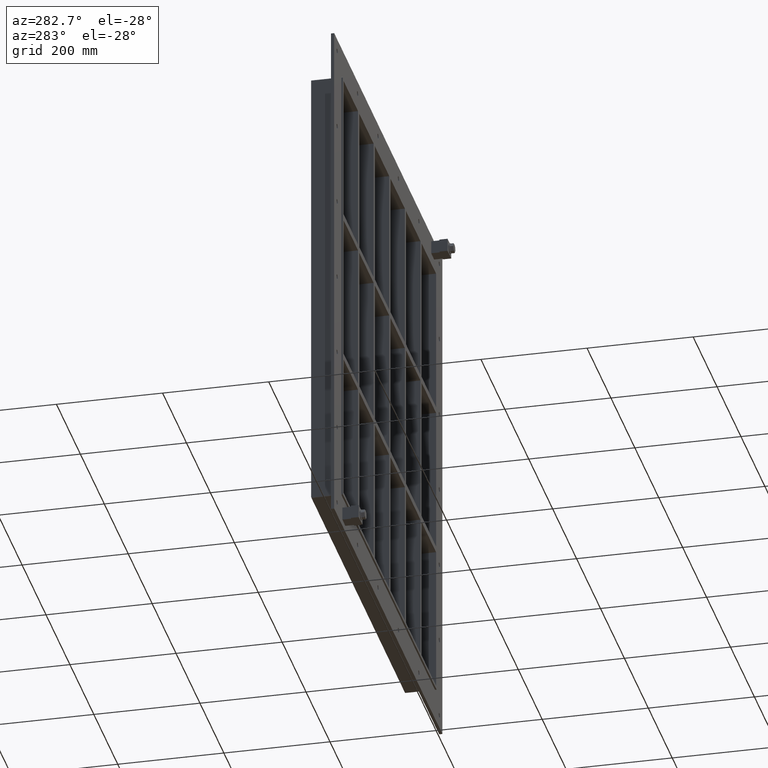
[diagram: clean part render]
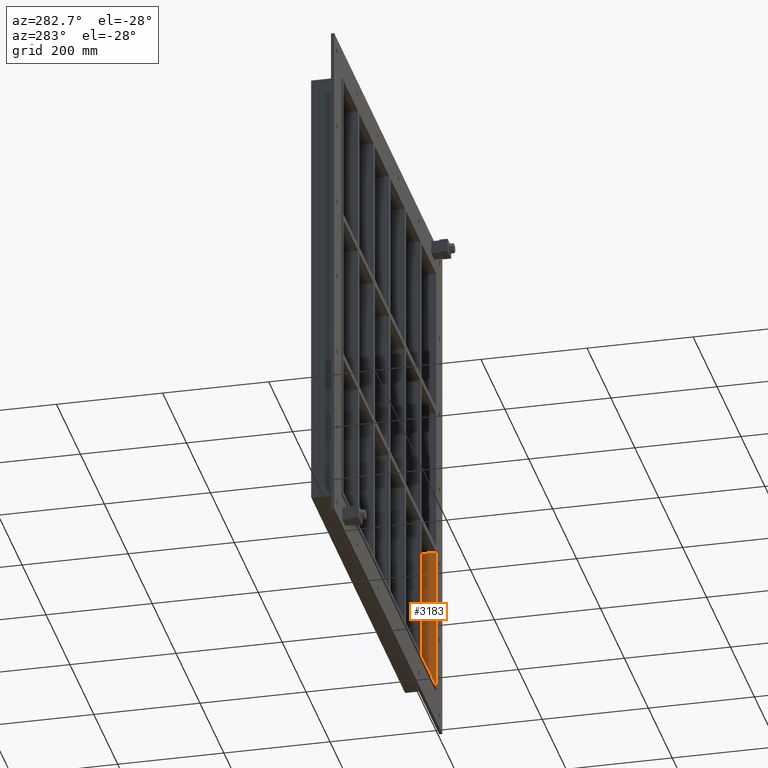
[diagram: same view with one face highlighted and labeled with its STEP entity id]
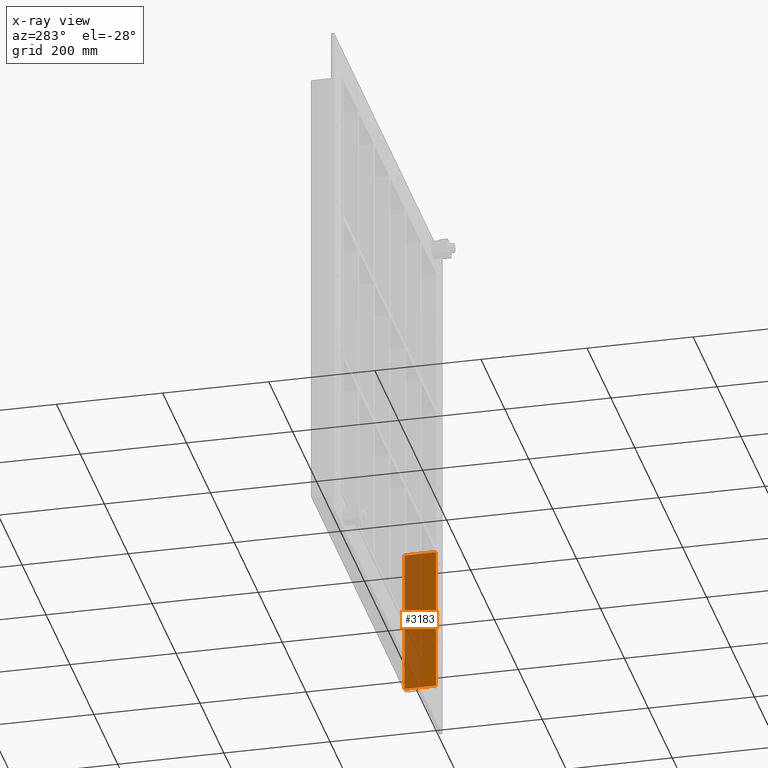
[diagram: x-ray of the same camera — body ghosted, the highlighted face saturated]
A machine part, auxiliary view. The second image highlights one B-rep face of the part: STEP entity #3183.
The next image is the same camera in x-ray: the body ghosted, the highlighted face saturated — about 49% of this face is hidden behind the body in this view.
In plain terms, the highlighted planar face has unit normal (1, 0, 0).
Its self-contained STEP definition (entity closure, byte-faithful):
#2029=CARTESIAN_POINT('',(386.50000000000011,57.0,-429.00000000000006));
#2030=VERTEX_POINT('',#2029);
#2037=CARTESIAN_POINT('',(386.49999999999636,57.0,-151.00000000001091));
#2038=VERTEX_POINT('',#2037);
#2039=CARTESIAN_POINT('',(386.50000000000011,57.0,-429.00000000000011));
#2040=DIRECTION('',(0.0,0.0,1.0));
#2041=VECTOR('',#2040,277.9999999999892);
#2042=LINE('',#2039,#2041);
#2043=EDGE_CURVE('',#2030,#2038,#2042,.T.);
#2583=CARTESIAN_POINT('',(386.50000000000011,-3.0,-429.00000000000006));
#2584=VERTEX_POINT('',#2583);
#2591=CARTESIAN_POINT('',(386.50000000000011,56.999999999999993,-429.00000000000006));
#2592=DIRECTION('',(0.0,-1.0,0.0));
#2593=VECTOR('',#2592,59.999999999999993);
#2594=LINE('',#2591,#2593);
#2595=EDGE_CURVE('',#2030,#2584,#2594,.T.);
#2874=CARTESIAN_POINT('',(386.49999999999636,-3.0,-151.00000000001091));
#2875=VERTEX_POINT('',#2874);
#2882=CARTESIAN_POINT('',(386.50000000000011,-3.0,-151.00000000001091));
#2883=DIRECTION('',(0.0,0.0,-1.0));
#2884=VECTOR('',#2883,277.9999999999892);
#2885=LINE('',#2882,#2884);
#2886=EDGE_CURVE('',#2875,#2584,#2885,.T.);
#2933=CARTESIAN_POINT('',(386.50000000000011,-3.0,-151.00000000001091));
#2934=DIRECTION('',(0.0,1.0,0.0));
#2935=VECTOR('',#2934,60.000000000000007);
#2936=LINE('',#2933,#2935);
#2937=EDGE_CURVE('',#2875,#2038,#2936,.T.);
#3172=CARTESIAN_POINT('',(386.50000000000011,0.0,429.00000000000006));
#3173=DIRECTION('',(1.0,0.0,0.0));
#3174=DIRECTION('',(0.0,0.0,-1.0));
#3175=AXIS2_PLACEMENT_3D('',#3172,#3173,#3174);
#3176=PLANE('',#3175);
#3177=ORIENTED_EDGE('',*,*,#2937,.T.);
#3178=ORIENTED_EDGE('',*,*,#2043,.F.);
#3179=ORIENTED_EDGE('',*,*,#2595,.T.);
#3180=ORIENTED_EDGE('',*,*,#2886,.F.);
#3181=EDGE_LOOP('',(#3177,#3178,#3179,#3180));
#3182=FACE_OUTER_BOUND('',#3181,.T.);
#3183=ADVANCED_FACE('',(#3182),#3176,.F.);